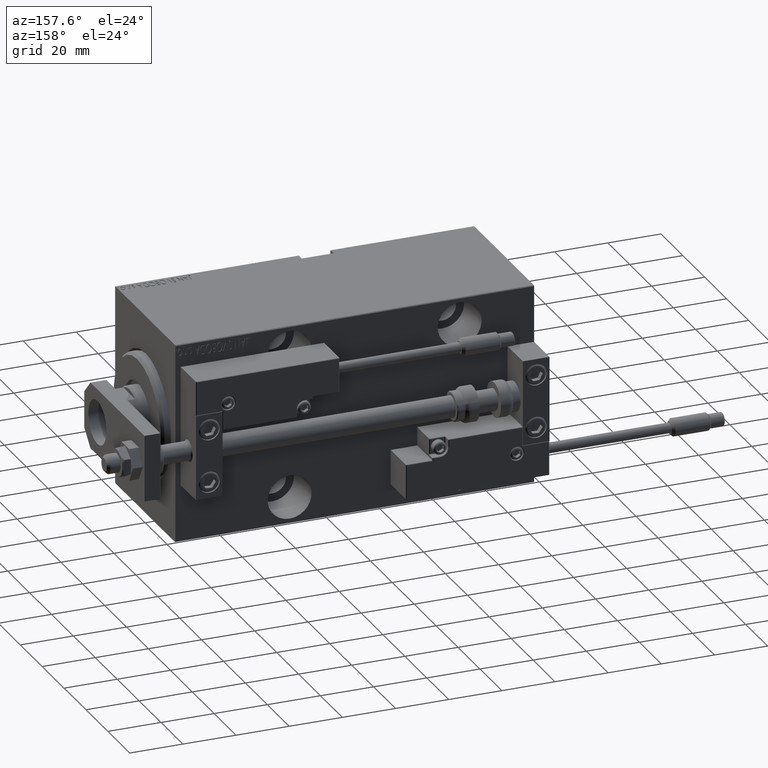
[diagram: clean part render]
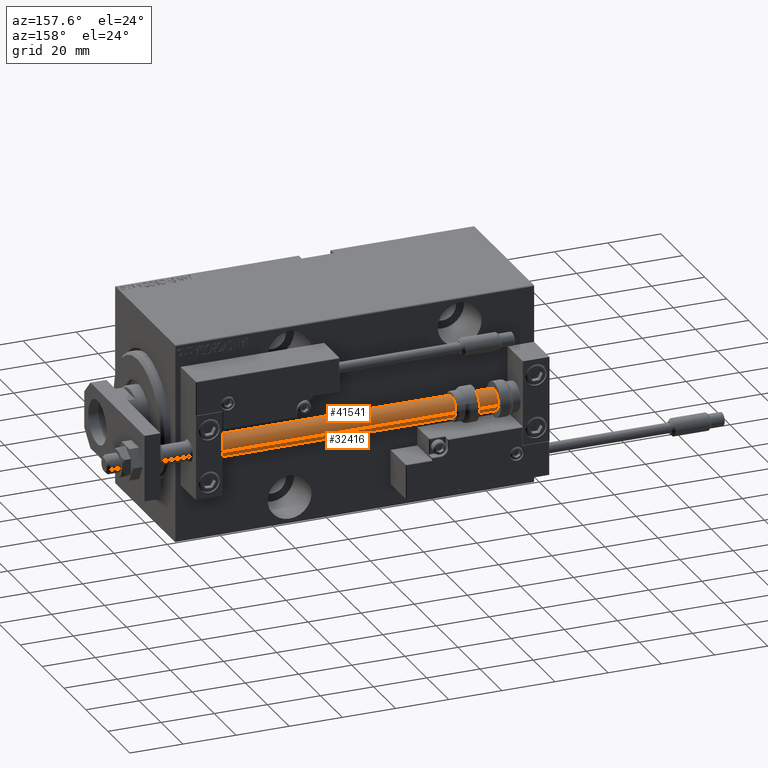
[diagram: same view with one multi-face feature highlighted, each face labeled with its STEP entity id]
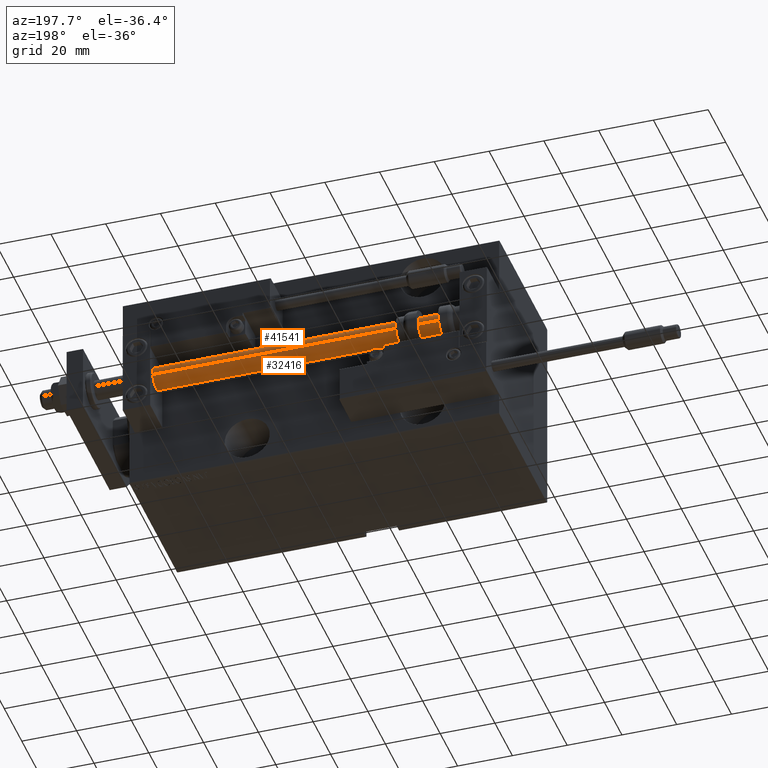
[diagram: same view with one multi-face feature highlighted, each face labeled with its STEP entity id]
A machine part, auxiliary view. The highlighted faces form ONE feature: a constant-radius fillet chain: 2 tangent blend faces with common blend radius 4 mm. The faces share edges in the B-rep.
A second angle (auxiliary view) of the same feature is appended — it is thin or edge-on in the first view.
Their STEP definitions:
[1] entity #32416 (Cylinder):
#202 = CARTESIAN_POINT ( 'NONE',  ( -4.000000000000000000, 0.000000000000000000, 135.0000000000000000 ) ) ;
#422 = CARTESIAN_POINT ( 'NONE',  ( -4.000000000000000000, 0.000000000000000000, 135.0000000000000000 ) ) ;
#544 = EDGE_CURVE ( 'NONE', #42055, #8010, #21711, .T. ) ;
#869 = CARTESIAN_POINT ( 'NONE',  ( 0.000000000000000000, 0.000000000000000000, 2.000000000000029310 ) ) ;
#945 = VECTOR ( 'NONE', #15136, 1000.000000000000000 ) ;
#1310 = ORIENTED_EDGE ( 'NONE', *, *, #35558, .T. ) ;
#5399 = FACE_OUTER_BOUND ( 'NONE', #27452, .T. ) ;
#5651 = DIRECTION ( 'NONE',  ( -0.000000000000000000, -0.000000000000000000, -1.000000000000000000 ) ) ;
#6890 = AXIS2_PLACEMENT_3D ( 'NONE', #869, #50005, #12508 ) ;
#7565 = DIRECTION ( 'NONE',  ( 0.000000000000000000, 0.000000000000000000, 1.000000000000000000 ) ) ;
#8010 = VERTEX_POINT ( 'NONE', #422 ) ;
#9650 = AXIS2_PLACEMENT_3D ( 'NONE', #18681, #7565, #14901 ) ;
#9716 = CYLINDRICAL_SURFACE ( 'NONE', #34289, 4.000000000000000000 ) ;
#11267 = CARTESIAN_POINT ( 'NONE',  ( 4.000000000000000000, 4.898587196589412829E-16, 135.0000000000000000 ) ) ;
#12508 = DIRECTION ( 'NONE',  ( 1.000000000000000000, 0.000000000000000000, 0.000000000000000000 ) ) ;
#14901 = DIRECTION ( 'NONE',  ( 1.000000000000000000, 0.000000000000000000, 0.000000000000000000 ) ) ;
#15136 = DIRECTION ( 'NONE',  ( -0.000000000000000000, -0.000000000000000000, -1.000000000000000000 ) ) ;
#15513 = VERTEX_POINT ( 'NONE', #36909 ) ;
#15990 = LINE ( 'NONE', #46420, #46005 ) ;
#18681 = CARTESIAN_POINT ( 'NONE',  ( 0.000000000000000000, 0.000000000000000000, 135.0000000000000000 ) ) ;
#21072 = CARTESIAN_POINT ( 'NONE',  ( 0.000000000000000000, 0.000000000000000000, 135.0000000000000000 ) ) ;
#21711 = CIRCLE ( 'NONE', #9650, 4.000000000000000000 ) ;
#21810 = DIRECTION ( 'NONE',  ( -1.000000000000000000, 0.000000000000000000, 0.000000000000000000 ) ) ;
#23023 = EDGE_CURVE ( 'NONE', #8010, #26796, #34135, .T. ) ;
#24671 = CIRCLE ( 'NONE', #6890, 4.000000000000000000 ) ;
#26796 = VERTEX_POINT ( 'NONE', #45880 ) ;
#27452 = EDGE_LOOP ( 'NONE', ( #36007, #34696, #1310, #42549 ) ) ;
#32416 = ADVANCED_FACE ( 'NONE', ( #5399 ), #9716, .T. ) ;
#34135 = LINE ( 'NONE', #202, #945 ) ;
#34264 = DIRECTION ( 'NONE',  ( -0.000000000000000000, -0.000000000000000000, -1.000000000000000000 ) ) ;
#34289 = AXIS2_PLACEMENT_3D ( 'NONE', #21072, #5651, #21810 ) ;
#34696 = ORIENTED_EDGE ( 'NONE', *, *, #45311, .T. ) ;
#35558 = EDGE_CURVE ( 'NONE', #15513, #26796, #24671, .T. ) ;
#36007 = ORIENTED_EDGE ( 'NONE', *, *, #544, .F. ) ;
#36909 = CARTESIAN_POINT ( 'NONE',  ( 4.000000000000000000, 4.898587196589412829E-16, 2.000000000000029310 ) ) ;
#42055 = VERTEX_POINT ( 'NONE', #11267 ) ;
#42549 = ORIENTED_EDGE ( 'NONE', *, *, #23023, .F. ) ;
#45311 = EDGE_CURVE ( 'NONE', #42055, #15513, #15990, .T. ) ;
#45880 = CARTESIAN_POINT ( 'NONE',  ( -4.000000000000000000, 0.000000000000000000, 2.000000000000029310 ) ) ;
#46005 = VECTOR ( 'NONE', #34264, 1000.000000000000000 ) ;
#46420 = CARTESIAN_POINT ( 'NONE',  ( 4.000000000000000000, 4.898587196589412829E-16, 135.0000000000000000 ) ) ;
#50005 = DIRECTION ( 'NONE',  ( -0.000000000000000000, -0.000000000000000000, 1.000000000000000000 ) ) ;
[2] entity #41541 (Cylinder):
#202 = CARTESIAN_POINT ( 'NONE',  ( -4.000000000000000000, 0.000000000000000000, 135.0000000000000000 ) ) ;
#227 = ORIENTED_EDGE ( 'NONE', *, *, #45311, .F. ) ;
#422 = CARTESIAN_POINT ( 'NONE',  ( -4.000000000000000000, 0.000000000000000000, 135.0000000000000000 ) ) ;
#945 = VECTOR ( 'NONE', #15136, 1000.000000000000000 ) ;
#4766 = DIRECTION ( 'NONE',  ( 0.000000000000000000, 0.000000000000000000, 1.000000000000000000 ) ) ;
#7909 = CARTESIAN_POINT ( 'NONE',  ( 0.000000000000000000, 0.000000000000000000, 135.0000000000000000 ) ) ;
#8010 = VERTEX_POINT ( 'NONE', #422 ) ;
#10232 = ORIENTED_EDGE ( 'NONE', *, *, #32961, .F. ) ;
#11267 = CARTESIAN_POINT ( 'NONE',  ( 4.000000000000000000, 4.898587196589412829E-16, 135.0000000000000000 ) ) ;
#14186 = ORIENTED_EDGE ( 'NONE', *, *, #23023, .T. ) ;
#15136 = DIRECTION ( 'NONE',  ( -0.000000000000000000, -0.000000000000000000, -1.000000000000000000 ) ) ;
#15513 = VERTEX_POINT ( 'NONE', #36909 ) ;
#15990 = LINE ( 'NONE', #46420, #46005 ) ;
#18890 = EDGE_LOOP ( 'NONE', ( #227, #10232, #14186, #28146 ) ) ;
#19516 = DIRECTION ( 'NONE',  ( -0.000000000000000000, -0.000000000000000000, -1.000000000000000000 ) ) ;
#19533 = EDGE_CURVE ( 'NONE', #26796, #15513, #27442, .T. ) ;
#23023 = EDGE_CURVE ( 'NONE', #8010, #26796, #34135, .T. ) ;
#26796 = VERTEX_POINT ( 'NONE', #45880 ) ;
#27011 = CARTESIAN_POINT ( 'NONE',  ( 0.000000000000000000, 0.000000000000000000, 2.000000000000029310 ) ) ;
#27442 = CIRCLE ( 'NONE', #37219, 4.000000000000000000 ) ;
#28146 = ORIENTED_EDGE ( 'NONE', *, *, #19533, .T. ) ;
#29454 = CIRCLE ( 'NONE', #39994, 4.000000000000000000 ) ;
#30443 = FACE_OUTER_BOUND ( 'NONE', #18890, .T. ) ;
#30815 = DIRECTION ( 'NONE',  ( 1.000000000000000000, 0.000000000000000000, 0.000000000000000000 ) ) ;
#32961 = EDGE_CURVE ( 'NONE', #8010, #42055, #29454, .T. ) ;
#33863 = DIRECTION ( 'NONE',  ( -0.000000000000000000, -0.000000000000000000, 1.000000000000000000 ) ) ;
#34135 = LINE ( 'NONE', #202, #945 ) ;
#34264 = DIRECTION ( 'NONE',  ( -0.000000000000000000, -0.000000000000000000, -1.000000000000000000 ) ) ;
#35659 = DIRECTION ( 'NONE',  ( 1.000000000000000000, 0.000000000000000000, 0.000000000000000000 ) ) ;
#36909 = CARTESIAN_POINT ( 'NONE',  ( 4.000000000000000000, 4.898587196589412829E-16, 2.000000000000029310 ) ) ;
#37219 = AXIS2_PLACEMENT_3D ( 'NONE', #27011, #33863, #30815 ) ;
#38703 = CARTESIAN_POINT ( 'NONE',  ( 0.000000000000000000, 0.000000000000000000, 135.0000000000000000 ) ) ;
#39994 = AXIS2_PLACEMENT_3D ( 'NONE', #38703, #4766, #35659 ) ;
#41541 = ADVANCED_FACE ( 'NONE', ( #30443 ), #49954, .T. ) ;
#42055 = VERTEX_POINT ( 'NONE', #11267 ) ;
#42374 = DIRECTION ( 'NONE',  ( -1.000000000000000000, 0.000000000000000000, 0.000000000000000000 ) ) ;
#45311 = EDGE_CURVE ( 'NONE', #42055, #15513, #15990, .T. ) ;
#45866 = AXIS2_PLACEMENT_3D ( 'NONE', #7909, #19516, #42374 ) ;
#45880 = CARTESIAN_POINT ( 'NONE',  ( -4.000000000000000000, 0.000000000000000000, 2.000000000000029310 ) ) ;
#46005 = VECTOR ( 'NONE', #34264, 1000.000000000000000 ) ;
#46420 = CARTESIAN_POINT ( 'NONE',  ( 4.000000000000000000, 4.898587196589412829E-16, 135.0000000000000000 ) ) ;
#49954 = CYLINDRICAL_SURFACE ( 'NONE', #45866, 4.000000000000000000 ) ;